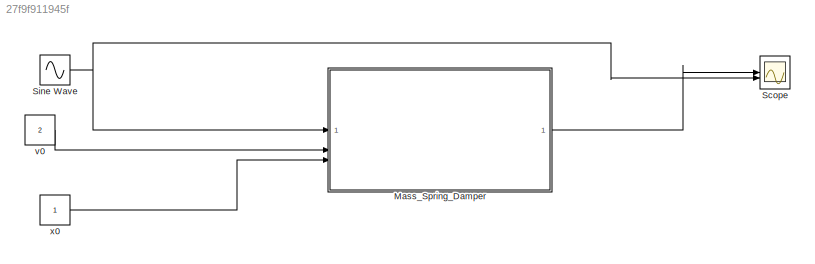
MODEL slx_27f9f911945f
KIND model
CONFIG AbsTol = auto
CONFIG EnableMultiTasking = off
CONFIG FixedStep = auto
CONFIG MaxStep = 0.001
CONFIG MinStep = auto
CONFIG RelTol = 1e-3
CONFIG SampleTimeConstraint = Unconstrained
CONFIG SolverName = VariableStepAuto
CONFIG StartTime = 0.0
CONFIG StopTime = 30
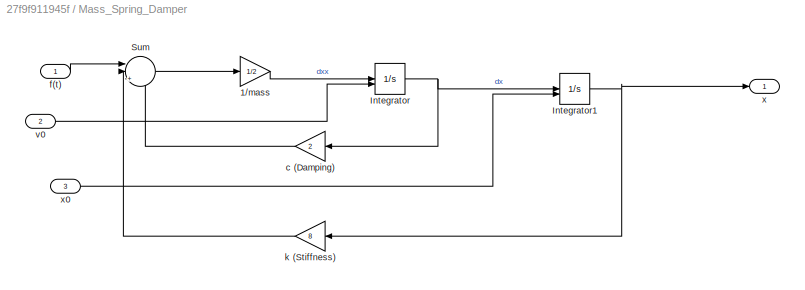
BLOCK [SubSystem] Mass_Spring_Damper
BLOCK [Gain] Mass_Spring_Damper/1//mass
  Gain = 1/2
BLOCK [Integrator] Mass_Spring_Damper/Integrator
  InitialCondition = 2
  InitialConditionSource = external
BLOCK [Integrator] Mass_Spring_Damper/Integrator1
  InitialCondition = 1
  InitialConditionSource = external
BLOCK [Sum] Mass_Spring_Damper/Sum
  Inputs = ||+--
BLOCK [Gain] Mass_Spring_Damper/c (Damping)
  Gain = 2
BLOCK [Inport] Mass_Spring_Damper/f(t)
BLOCK [Gain] Mass_Spring_Damper/k (Stiffness)
  Gain = 8
BLOCK [Inport] Mass_Spring_Damper/v0
  Port = 2
BLOCK [Outport] Mass_Spring_Damper/x
BLOCK [Inport] Mass_Spring_Damper/x0
  Port = 3
BLOCK [Scope] Scope
  Floating = off
  NumInputPorts = 2
  ScopeSpecificationString = Simulink.scopes.TimeScopeBlockCfg('CurrentConfiguration', extmgr.ConfigurationSet(extmgr.Configuration('Core','General UI',true),extmgr.Configuration('Core','Source UI',true),extmgr.Configuration('Sources','WiredSimulink',true),extmgr.Configuration('Visuals','Time Domain',true,'SerializedDisplays',{struct('MinYLimReal','-1.00455','MaxYLimReal','2.05','YLabelReal','','MinYLimMag','0.00000','MaxYLim...<+1563ch>
BLOCK [Sin] Sine Wave
  Amplitude = 2
  Frequency = 2
  SampleTime = 0
BLOCK [Constant] v0
  Value = 2
BLOCK [Constant] x0
LINE Mass_Spring_Damper/1//mass:1 -> Mass_Spring_Damper/Integrator:1
NET Mass_Spring_Damper/Integrator1:1 -> Mass_Spring_Damper/k (Stiffness):1, Mass_Spring_Damper/x:1
NET Mass_Spring_Damper/Integrator:1 -> Mass_Spring_Damper/Integrator1:1, Mass_Spring_Damper/c (Damping):1
LINE Mass_Spring_Damper/Sum:1 -> Mass_Spring_Damper/1//mass:1
LINE Mass_Spring_Damper/c (Damping):1 -> Mass_Spring_Damper/Sum:3
LINE Mass_Spring_Damper/f(t):1 -> Mass_Spring_Damper/Sum:1
LINE Mass_Spring_Damper/k (Stiffness):1 -> Mass_Spring_Damper/Sum:2
LINE Mass_Spring_Damper/v0:1 -> Mass_Spring_Damper/Integrator:2
LINE Mass_Spring_Damper/x0:1 -> Mass_Spring_Damper/Integrator1:2
LINE Mass_Spring_Damper:1 -> Scope:1
NET Sine Wave:1 -> Mass_Spring_Damper:1, Scope:2
LINE v0:1 -> Mass_Spring_Damper:2
LINE x0:1 -> Mass_Spring_Damper:3
note: NET lines group one-source signal fan-out (src -> all destinations, sorted); 1:1 wires keep LINE
